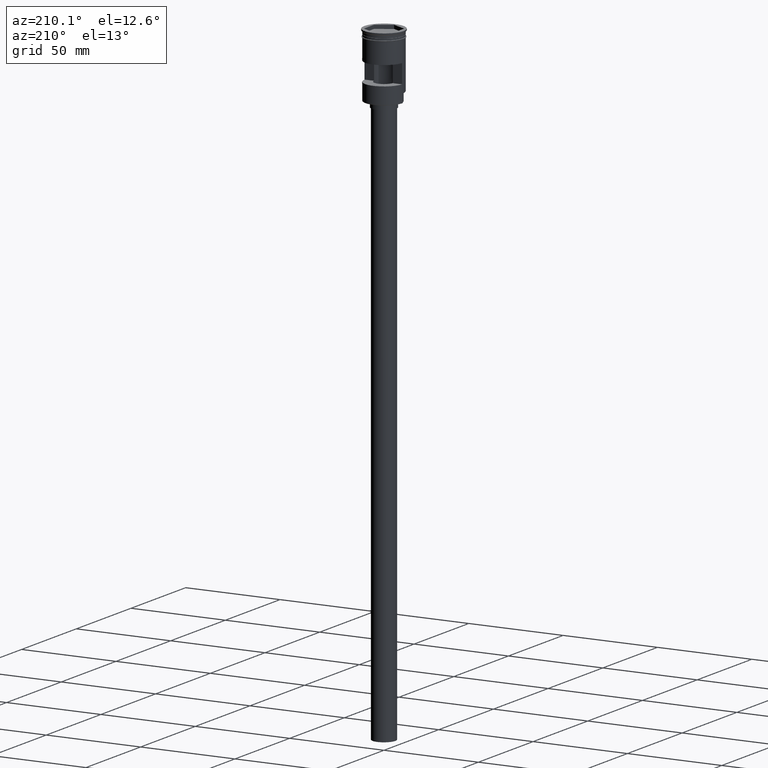
[diagram: clean part render]
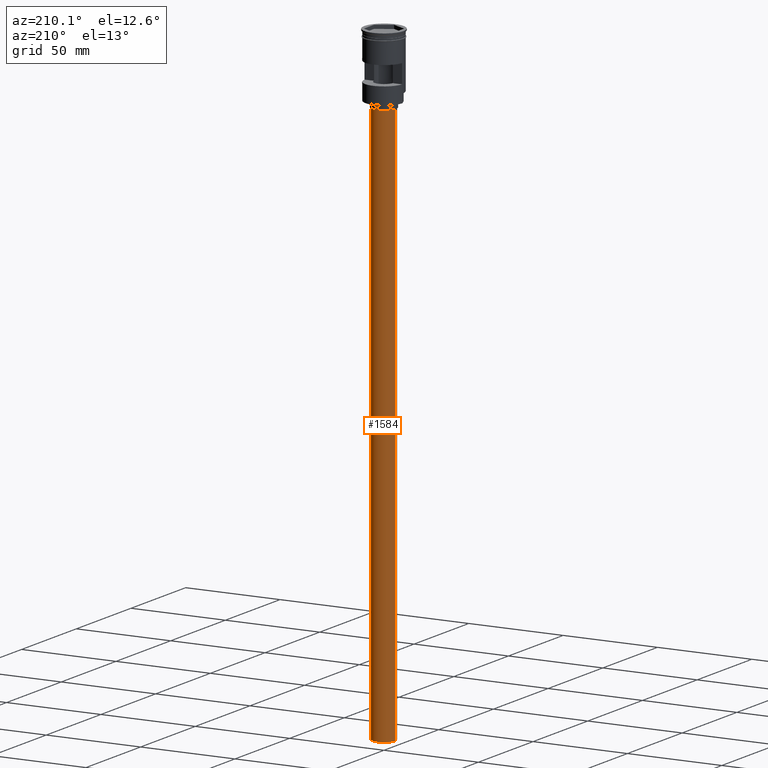
[diagram: same view with one face highlighted and labeled with its STEP entity id]
A machine part, auxiliary view. The second image highlights one B-rep face of the part: STEP entity #1584.
In plain terms, the highlighted cylindrical surface (edge-blend (fillet) strip) has radius 6 mm, axis along (-0, -0, 1).
Its self-contained STEP definition (entity closure, byte-faithful):
#1 = DIRECTION ( 'NONE',  ( -1.000000000000000000, 0.000000000000000000, 0.000000000000000000 ) ) ;
#34 = ORIENTED_EDGE ( 'NONE', *, *, #732, .T. ) ;
#68 = DIRECTION ( 'NONE',  ( -0.000000000000000000, -0.000000000000000000, 1.000000000000000000 ) ) ;
#131 = EDGE_LOOP ( 'NONE', ( #455, #34, #926, #352 ) ) ;
#157 = FACE_OUTER_BOUND ( 'NONE', #131, .T. ) ;
#227 = CIRCLE ( 'NONE', #1208, 6.000000000000000888 ) ;
#291 = DIRECTION ( 'NONE',  ( 1.000000000000000000, 0.000000000000000000, 0.000000000000000000 ) ) ;
#352 = ORIENTED_EDGE ( 'NONE', *, *, #1109, .F. ) ;
#376 = AXIS2_PLACEMENT_3D ( 'NONE', #1007, #487, #1 ) ;
#390 = EDGE_CURVE ( 'NONE', #1141, #961, #1076, .T. ) ;
#401 = CARTESIAN_POINT ( 'NONE',  ( 6.000000000000000888, 0.000000000000000000, -333.9999999999999432 ) ) ;
#455 = ORIENTED_EDGE ( 'NONE', *, *, #390, .F. ) ;
#487 = DIRECTION ( 'NONE',  ( 0.000000000000000000, 0.000000000000000000, -1.000000000000000000 ) ) ;
#510 = DIRECTION ( 'NONE',  ( 0.000000000000000000, 0.000000000000000000, -1.000000000000000000 ) ) ;
#540 = CYLINDRICAL_SURFACE ( 'NONE', #694, 6.000000000000000888 ) ;
#585 = CARTESIAN_POINT ( 'NONE',  ( -6.000000000000000888, 7.347880794884120722E-16, -333.9999999999999432 ) ) ;
#684 = LINE ( 'NONE', #1178, #998 ) ;
#694 = AXIS2_PLACEMENT_3D ( 'NONE', #1137, #1383, #291 ) ;
#718 = VERTEX_POINT ( 'NONE', #1590 ) ;
#719 = VECTOR ( 'NONE', #724, 1000.000000000000000 ) ;
#724 = DIRECTION ( 'NONE',  ( -0.000000000000000000, -0.000000000000000000, 1.000000000000000000 ) ) ;
#732 = EDGE_CURVE ( 'NONE', #1141, #718, #1326, .T. ) ;
#734 = DIRECTION ( 'NONE',  ( -1.000000000000000000, 0.000000000000000000, 0.000000000000000000 ) ) ;
#818 = CARTESIAN_POINT ( 'NONE',  ( -6.000000000000000888, 7.347880794884120722E-16, -333.9999999999999432 ) ) ;
#854 = VERTEX_POINT ( 'NONE', #1112 ) ;
#880 = EDGE_CURVE ( 'NONE', #718, #854, #227, .T. ) ;
#926 = ORIENTED_EDGE ( 'NONE', *, *, #880, .T. ) ;
#961 = VERTEX_POINT ( 'NONE', #401 ) ;
#998 = VECTOR ( 'NONE', #68, 1000.000000000000000 ) ;
#1007 = CARTESIAN_POINT ( 'NONE',  ( 0.000000000000000000, 0.000000000000000000, -333.9999999999999432 ) ) ;
#1076 = CIRCLE ( 'NONE', #376, 6.000000000000000888 ) ;
#1109 = EDGE_CURVE ( 'NONE', #961, #854, #684, .T. ) ;
#1112 = CARTESIAN_POINT ( 'NONE',  ( 6.000000000000000888, 0.000000000000000000, -37.00000000000000000 ) ) ;
#1137 = CARTESIAN_POINT ( 'NONE',  ( 0.000000000000000000, 0.000000000000000000, -333.9999999999999432 ) ) ;
#1141 = VERTEX_POINT ( 'NONE', #585 ) ;
#1178 = CARTESIAN_POINT ( 'NONE',  ( 6.000000000000000888, 0.000000000000000000, -333.9999999999999432 ) ) ;
#1208 = AXIS2_PLACEMENT_3D ( 'NONE', #1504, #510, #734 ) ;
#1326 = LINE ( 'NONE', #818, #719 ) ;
#1383 = DIRECTION ( 'NONE',  ( -0.000000000000000000, -0.000000000000000000, 1.000000000000000000 ) ) ;
#1504 = CARTESIAN_POINT ( 'NONE',  ( 0.000000000000000000, 0.000000000000000000, -37.00000000000000000 ) ) ;
#1584 = ADVANCED_FACE ( 'NONE', ( #157 ), #540, .T. ) ;
#1590 = CARTESIAN_POINT ( 'NONE',  ( -6.000000000000000888, 7.347880794884120722E-16, -37.00000000000000000 ) ) ;